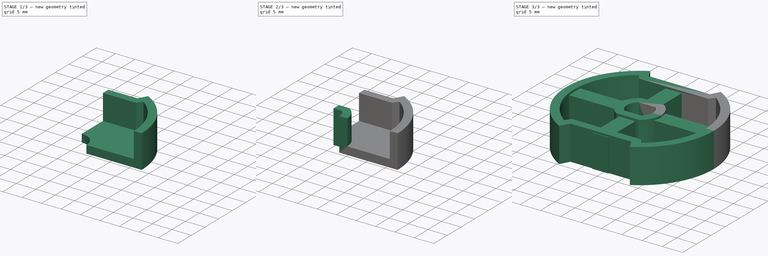
[diagram: build sequence overview — one tinted view per stage of 3, left to right]
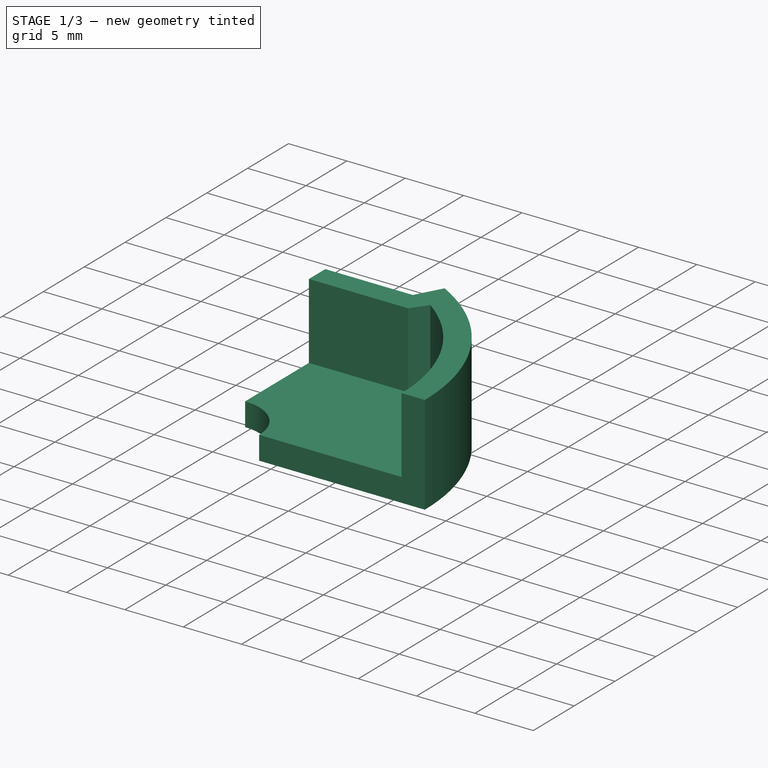
[diagram: stage 1 of 3 — iso view after this stage's code; geometry added in this stage tinted green]
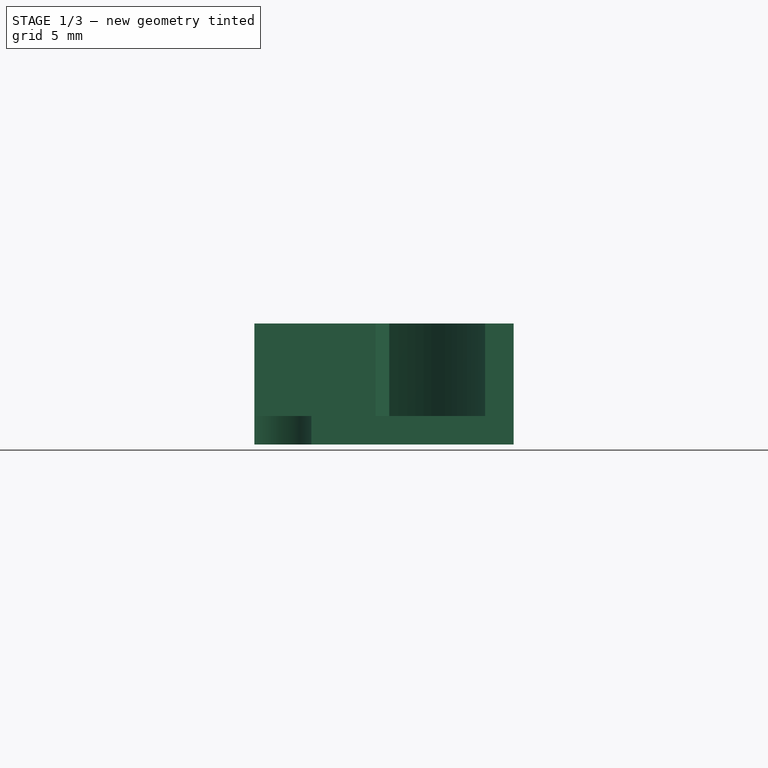
[diagram: stage 1 of 3 — front view after this stage's code; geometry added in this stage tinted green]
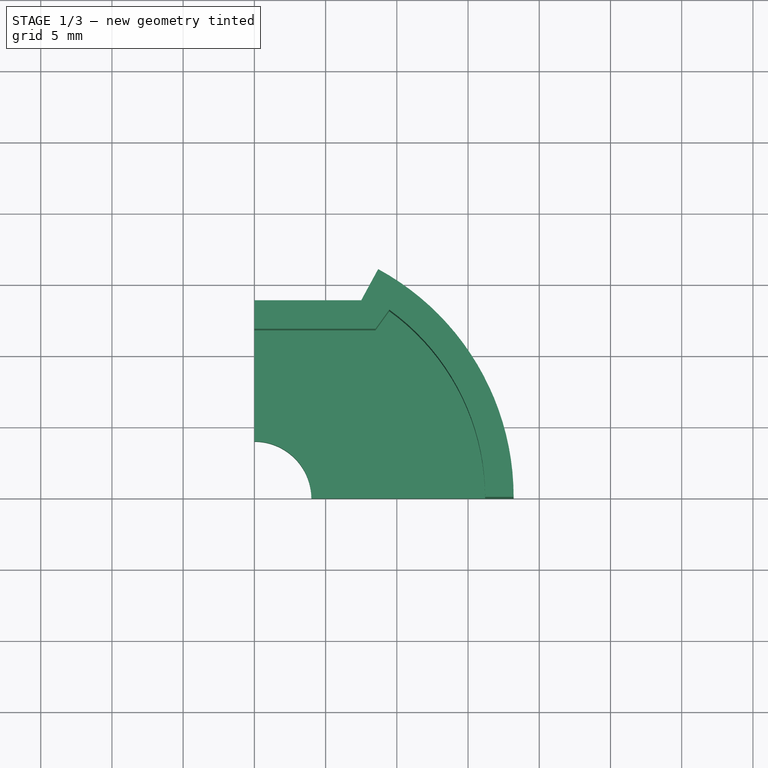
[diagram: stage 1 of 3 — top view after this stage's code; geometry added in this stage tinted green]
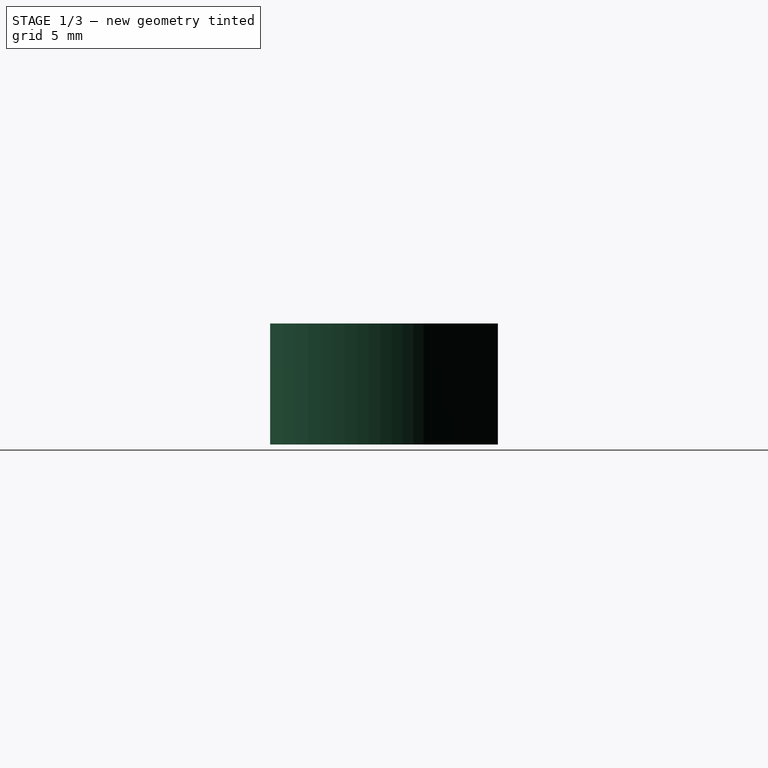
[diagram: stage 1 of 3 — right view after this stage's code; geometry added in this stage tinted green]
FCSTD DOCUMENT  (FreeCAD 1.0R39109 (Git))
Label: EndCap
License: All rights reserved
LicenseURL: http://en.wikipedia.org/wiki/All_rights_reserved
objects: Sketcher::SketchObject×4, PartDesign::Pad×4, PartDesign::Mirrored×2, PartDesign::MultiTransform×1, PartDesign::Body×1
note: 27 computed .brp shape members not serialized (recipe doc carries the construction recipe); baked Part::Feature solids carry a one-line shape summary decoded from their .brp

FEATURE [Sketcher::SketchObject] Sketch
  ArcFitTolerance = 1e-06
  AttachmentSupport = -> [XY_Plane]
  FullyConstrained = true
  MakeInternals = false
  MapMode = 5
  sketch-geometry (9):
    g0: ArcOfCircle CenterX=0 CenterY=0 CenterZ=0 NormalX=0 NormalY=0 NormalZ=1 AngleXU=0 Radius=18.2 StartAngle=0 EndAngle=1.07297
    g1: LineSegment StartX=0 StartY=13.8 StartZ=0 EndX=7.5 EndY=13.8 EndZ=0
    g2: LineSegment StartX=8.69074 StartY=15.991 StartZ=0 EndX=7.5 EndY=13.8 EndZ=0
    g3: ArcOfCircle CenterX=0 CenterY=0 CenterZ=0 NormalX=0 NormalY=0 NormalZ=1 AngleXU=0 Radius=16.2 StartAngle=0 EndAngle=0.946319
    g4: LineSegment StartX=16.2 StartY=0 StartZ=0 EndX=18.2 EndY=0 EndZ=0
    g5: LineSegment StartX=9.47171 StartY=13.1426 StartZ=0 EndX=8.50415 EndY=11.8 EndZ=0
    g6: LineSegment StartX=8.50415 StartY=11.8 StartZ=0 EndX=0 EndY=11.8 EndZ=0
    g7: LineSegment StartX=0 StartY=11.8 StartZ=0 EndX=0 EndY=13.8 EndZ=0
    g8: LineSegment [constr] StartX=7.5 StartY=13.8 StartZ=0 EndX=9.25725 EndY=12.845 EndZ=0
  constraints (27):
    c: Coincident(g0,g-1)
    c: PointOnObject(g0,g-1)
    c: Radius(g0) = 18.2
    c: PointOnObject(g1,g-2)
    c: Horizontal(g1)
    c: DistanceY(g0,g1) = 13.8
    c: DistanceX(g1,g1) = 7.5
    c: Coincident(g2,g0)
    c: Coincident(g2,g1)
    c: PointOnObject(g0,g2)
    c: Coincident(g3,g0)
    c: Coincident(g4,g3)
    c: Coincident(g4,g0)
    c: Coincident(g5,g3)
    c: Coincident(g6,g5)
    c: PointOnObject(g6,g-2)
    c: Horizontal(g6)
    c: Coincident(g7,g6)
    c: Coincident(g7,g1)
    c: Equal(g4,g7)
    c: DistanceX(g4,g4) = 2
    c: PointOnObject(g0,g5)
    c: Coincident(g8,g1)
    c: PointOnObject(g8,g5)
    c: Perpendicular(g2,g8)
    c: Equal(g8,g7)
    c: PointOnObject(g3,g-1)
FEATURE [PartDesign::Pad] Pad  label="OuterRim"
  Direction = (0,0,1)
  Length = 8.5
  Length2 = 10
  Profile = -> Sketch
  ReferenceAxis = -> Sketch [N_Axis]
  Refine = true
  Suppressed = false
  Type = 0
FEATURE [Sketcher::SketchObject] Sketch001
  ArcFitTolerance = 1e-06
  AttachmentSupport = -> [XY_Plane]
  FullyConstrained = true
  MakeInternals = false
  MapMode = 5
  sketch-geometry (6):
    g0: ArcOfCircle CenterX=0 CenterY=0 CenterZ=0 NormalX=0 NormalY=0 NormalZ=1 AngleXU=0 Radius=18 StartAngle=0 EndAngle=1.06682
    g1: LineSegment StartX=0 StartY=13.6 StartZ=0 EndX=7.5 EndY=13.6 EndZ=0
    g2: LineSegment StartX=8.69233 StartY=15.7621 StartZ=0 EndX=7.5 EndY=13.6 EndZ=0
    g3: LineSegment StartX=2e-16 StartY=4 StartZ=0 EndX=0 EndY=13.6 EndZ=0
    g4: LineSegment StartX=4 StartY=0 StartZ=0 EndX=18 EndY=0 EndZ=0
    g5: ArcOfCircle CenterX=0 CenterY=0 CenterZ=0 NormalX=0 NormalY=0 NormalZ=1 AngleXU=0 Radius=4 StartAngle=0 EndAngle=1.5708
  constraints (18):
    c: PointOnObject(g0,g-1)
    c: Radius(g0) = 18
    c: PointOnObject(g1,g-2)
    c: Horizontal(g1)
    c: DistanceY(g0,g1) = 13.6
    c: DistanceX(g1,g1) = 7.5
    c: Coincident(g2,g0)
    c: Coincident(g2,g1)
    c: PointOnObject(g0,g2)
    c: Coincident(g3,g1)
    c: Coincident(g4,g0)
    c: Coincident(g0,g-1)
    c: Coincident(g5,g0)
    c: Coincident(g5,g3)
    c: Coincident(g5,g4)
    c: PointOnObject(g4,g-1)
    c: PointOnObject(g3,g-2)
    c: Radius(g5) = 4
FEATURE [PartDesign::Pad] Pad001  label="BasePad"
  BaseFeature = -> Pad
  Direction = (0,0,1)
  Length = 2
  Length2 = 10
  Profile = -> Sketch001
  ReferenceAxis = -> Sketch001 [N_Axis]
  Refine = true
  Suppressed = false
  Type = 0
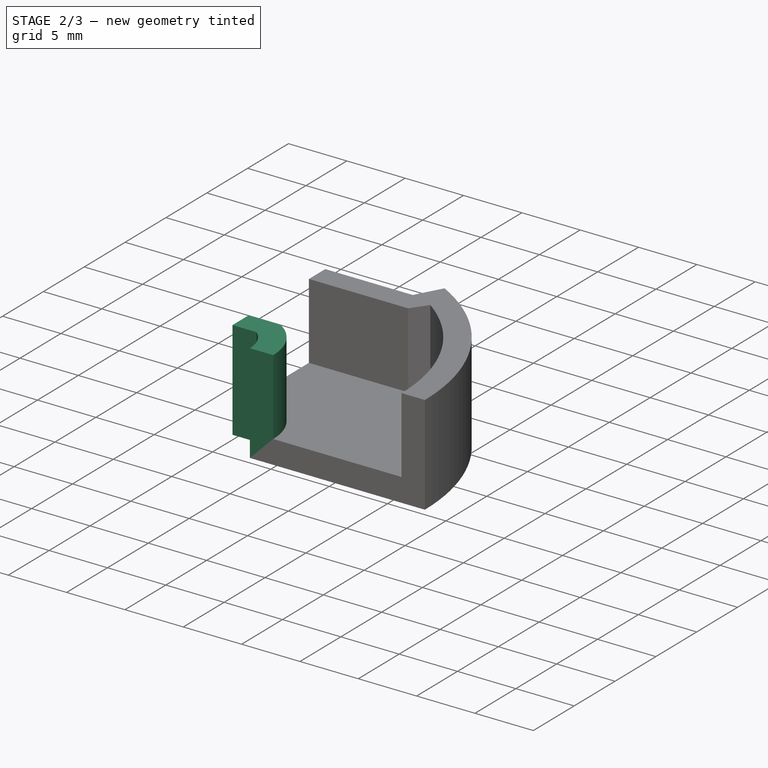
[diagram: stage 2 of 3 — iso view after this stage's code; geometry added in this stage tinted green]
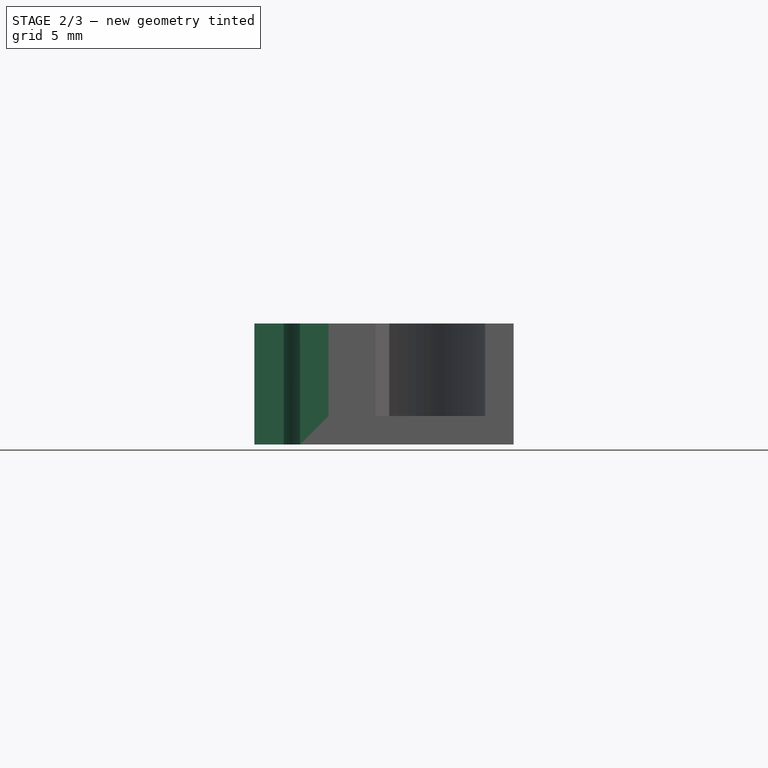
[diagram: stage 2 of 3 — front view after this stage's code; geometry added in this stage tinted green]
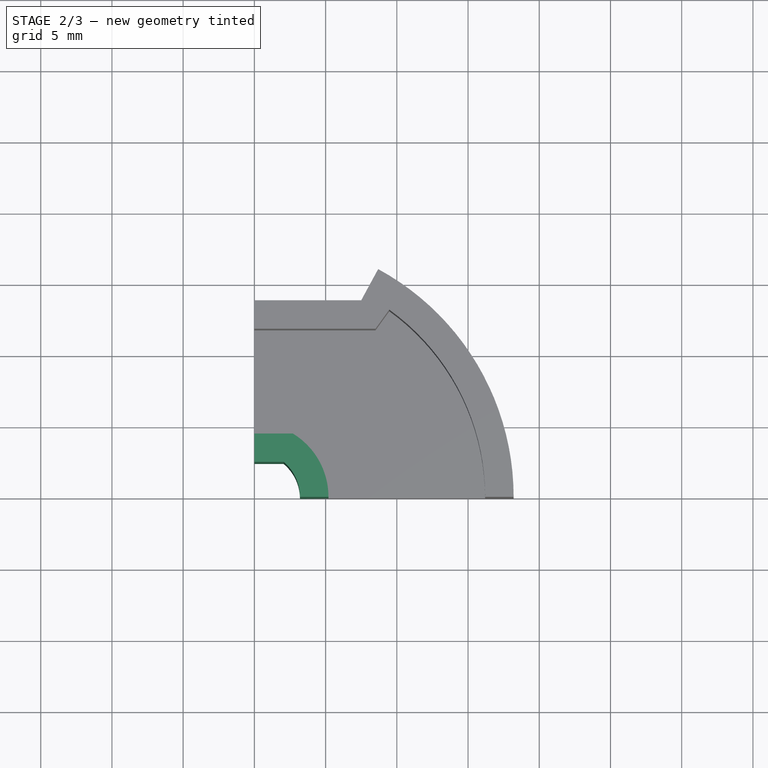
[diagram: stage 2 of 3 — top view after this stage's code; geometry added in this stage tinted green]
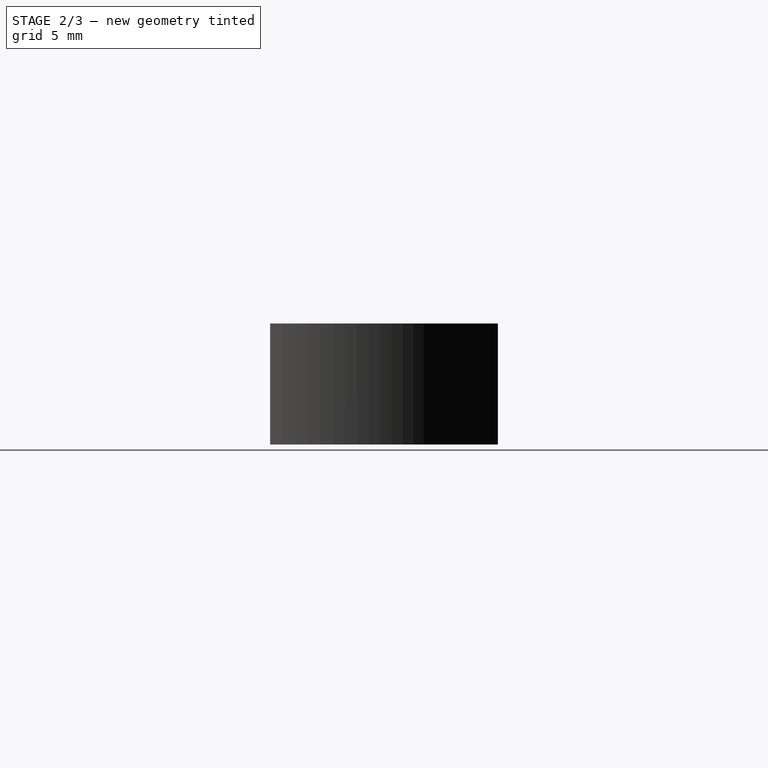
[diagram: stage 2 of 3 — right view after this stage's code; geometry added in this stage tinted green]
FEATURE [Sketcher::SketchObject] Sketch002
  ArcFitTolerance = 1e-06
  AttachmentSupport = -> [XY_Plane]
  FullyConstrained = true
  MakeInternals = false
  MapMode = 5
  sketch-geometry (6):
    g0: ArcOfCircle CenterX=0 CenterY=0 CenterZ=0 NormalX=0 NormalY=0 NormalZ=1 AngleXU=0 Radius=3.2 StartAngle=0 EndAngle=0.872012
    g1: LineSegment StartX=2.05852 StartY=2.45 StartZ=0 EndX=0 EndY=2.45 EndZ=0
    g2: LineSegment StartX=0 StartY=2.45 StartZ=0 EndX=0 EndY=4.45 EndZ=0
    g3: LineSegment StartX=0 StartY=4.45 StartZ=0 EndX=2.69026 EndY=4.45 EndZ=0
    g4: LineSegment StartX=3.2 StartY=0 StartZ=0 EndX=5.2 EndY=0 EndZ=0
    g5: ArcOfCircle CenterX=0 CenterY=0 CenterZ=0 NormalX=0 NormalY=0 NormalZ=1 AngleXU=0 Radius=5.2 StartAngle=0 EndAngle=1.02704
  constraints (18):
    c: Coincident(g0,g-1)
    c: Coincident(g1,g0)
    c: PointOnObject(g1,g-2)
    c: Horizontal(g1)
    c: PointOnObject(g0,g-1)
    c: DistanceY(g0,g1) = 2.45
    c: Radius(g0) = 3.2
    c: Coincident(g2,g1)
    c: Coincident(g3,g2)
    c: Horizontal(g3)
    c: Coincident(g4,g0)
    c: Coincident(g5,g0)
    c: Coincident(g5,g3)
    c: Coincident(g5,g4)
    c: PointOnObject(g4,g-1)
    c: PointOnObject(g2,g-2)
    c: Equal(g2,g4)
    c: DistanceY(g2,g2) = 2
FEATURE [PartDesign::Pad] Pad002  label="HolePad"
  BaseFeature = -> Pad001
  Direction = (0,0,1)
  Length = 8.5
  Length2 = 10
  Profile = -> Sketch002
  ReferenceAxis = -> Sketch002 [N_Axis]
  Refine = true
  Suppressed = false
  Type = 0
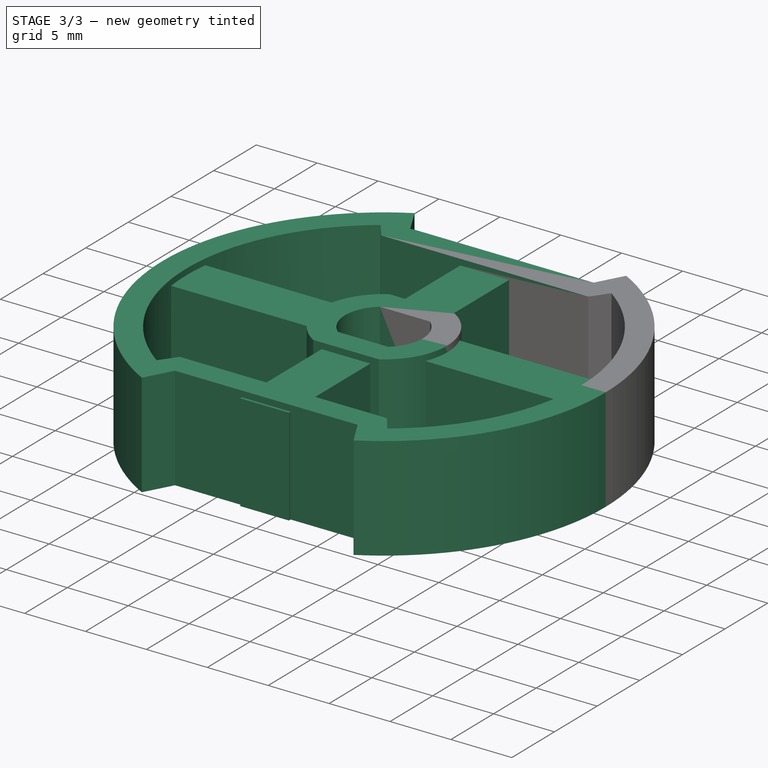
[diagram: stage 3 of 3 — iso view after this stage's code; geometry added in this stage tinted green]
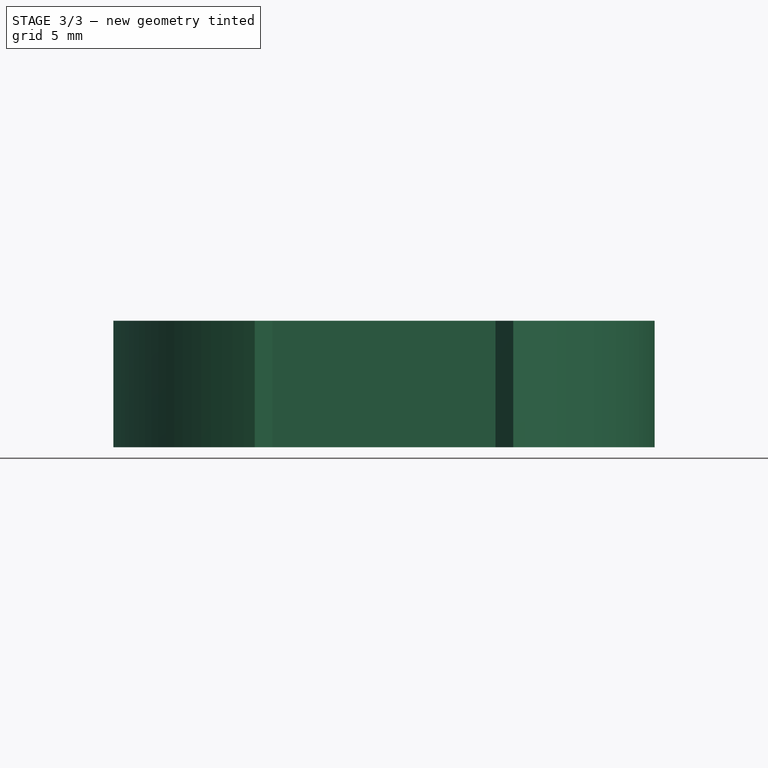
[diagram: stage 3 of 3 — front view after this stage's code; geometry added in this stage tinted green]
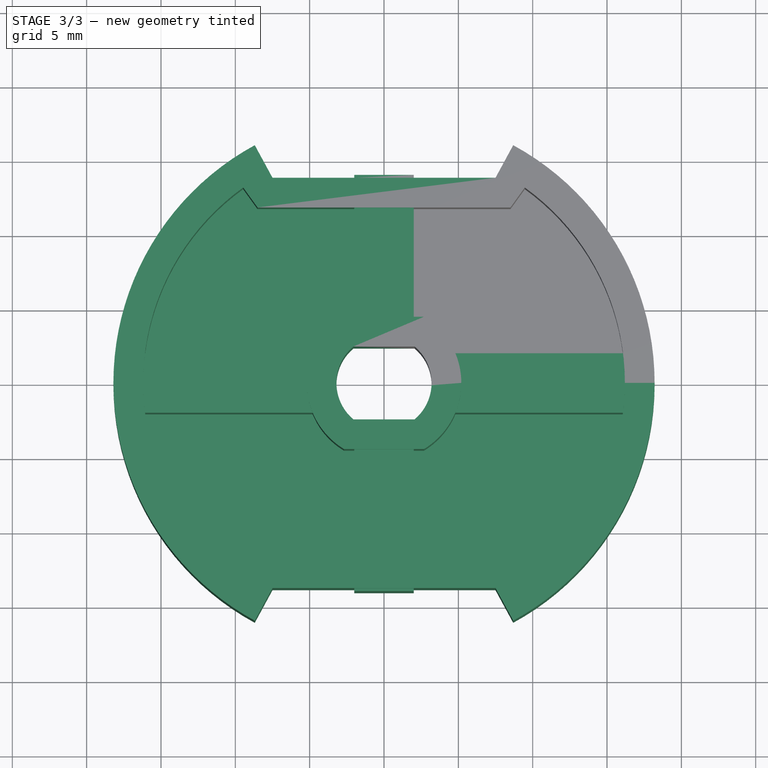
[diagram: stage 3 of 3 — top view after this stage's code; geometry added in this stage tinted green]
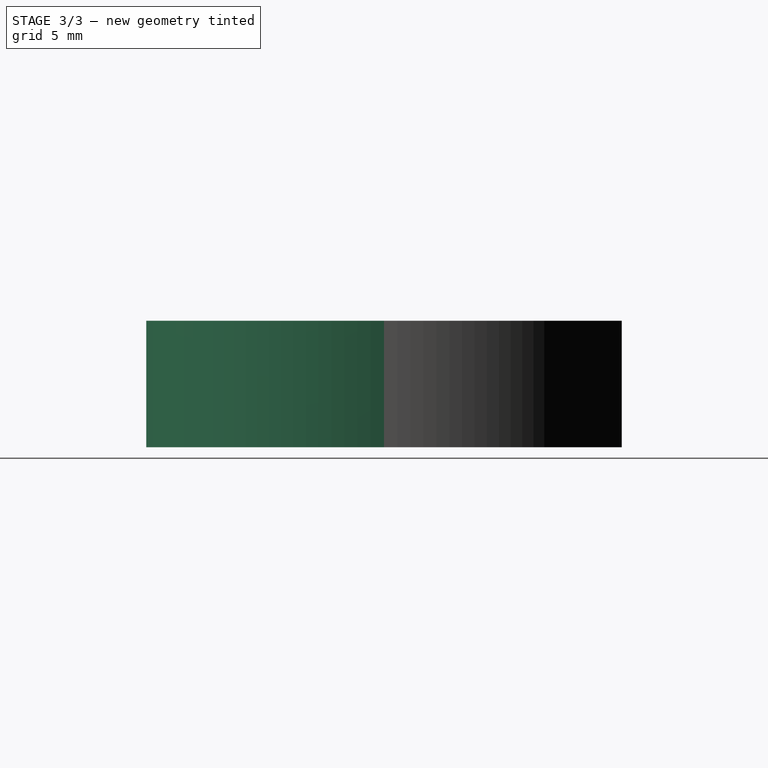
[diagram: stage 3 of 3 — right view after this stage's code; geometry added in this stage tinted green]
FEATURE [Sketcher::SketchObject] Sketch003
  ArcFitTolerance = 1e-06
  AttachmentSupport = -> [XY_Plane]
  FullyConstrained = true
  MakeInternals = false
  MapMode = 5
  sketch-geometry (8):
    g0: LineSegment StartX=0 StartY=4 StartZ=0 EndX=2 EndY=4 EndZ=0
    g1: LineSegment StartX=2 StartY=4 StartZ=0 EndX=2 EndY=14 EndZ=0
    g2: LineSegment StartX=2 StartY=14 StartZ=0 EndX=0 EndY=14 EndZ=0
    g3: LineSegment StartX=0 StartY=14 StartZ=0 EndX=0 EndY=4 EndZ=0
    g4: LineSegment StartX=4 StartY=2 StartZ=0 EndX=4 EndY=0 EndZ=0
    g5: LineSegment StartX=4 StartY=0 StartZ=0 EndX=18 EndY=0 EndZ=0
    g6: LineSegment StartX=18 StartY=0 StartZ=0 EndX=18 EndY=2 EndZ=0
    g7: LineSegment StartX=18 StartY=2 StartZ=0 EndX=4 EndY=2 EndZ=0
  constraints (24):
    c: Coincident(g0,g1)
    c: Coincident(g1,g2)
    c: Coincident(g2,g3)
    c: Coincident(g3,g0)
    c: Horizontal(g0)
    c: Horizontal(g2)
    c: Vertical(g1)
    c: Vertical(g3)
    c: PointOnObject(g0,g-2)
    c: Coincident(g4,g5)
    c: Coincident(g5,g6)
    c: Coincident(g6,g7)
    c: Coincident(g7,g4)
    c: Vertical(g4)
    c: Vertical(g6)
    c: Horizontal(g5)
    c: Horizontal(g7)
    c: PointOnObject(g5,g-1)
    c: DistanceX(g-1,g4) = 4
    c: DistanceY(g-1,g0) = 4
    c: Equal(g0,g4)
    c: DistanceX(g0,g0) = 2
    c: DistanceY(g3,g3) = 10
    c: DistanceX(g5,g5) = 14
FEATURE [PartDesign::Pad] Pad003  label="Spokes"
  BaseFeature = -> Pad002
  Direction = (0,0,1)
  Length = 8
  Length2 = 10
  Profile = -> Sketch003
  ReferenceAxis = -> Sketch003 [N_Axis]
  Refine = true
  Suppressed = false
  Type = 0
FEATURE [PartDesign::Mirrored] Mirrored
  MirrorPlane = -> Sketch003 [V_Axis]
  Refine = true
  Suppressed = false
  TransformMode = 0
FEATURE [PartDesign::Mirrored] Mirrored001
  MirrorPlane = -> Sketch003 [H_Axis]
  Refine = true
  Suppressed = false
  TransformMode = 0
FEATURE [PartDesign::MultiTransform] MultiTransform
  BaseFeature = -> Pad003
  Originals = -> [Pad003,Pad002,Pad001,Pad]
  Refine = true
  Suppressed = false
  TransformMode = 0
  Transformations = -> [Mirrored,Mirrored001]
FEATURE [PartDesign::Body] Body
  AllowCompound = false
  Group = -> [Sketch,Pad,Sketch001,Pad001,Sketch002,Pad002,Sketch003,Pad003,MultiTransform,Mirrored,Mirrored001]
  Origin = -> Origin
  Tip = -> MultiTransform
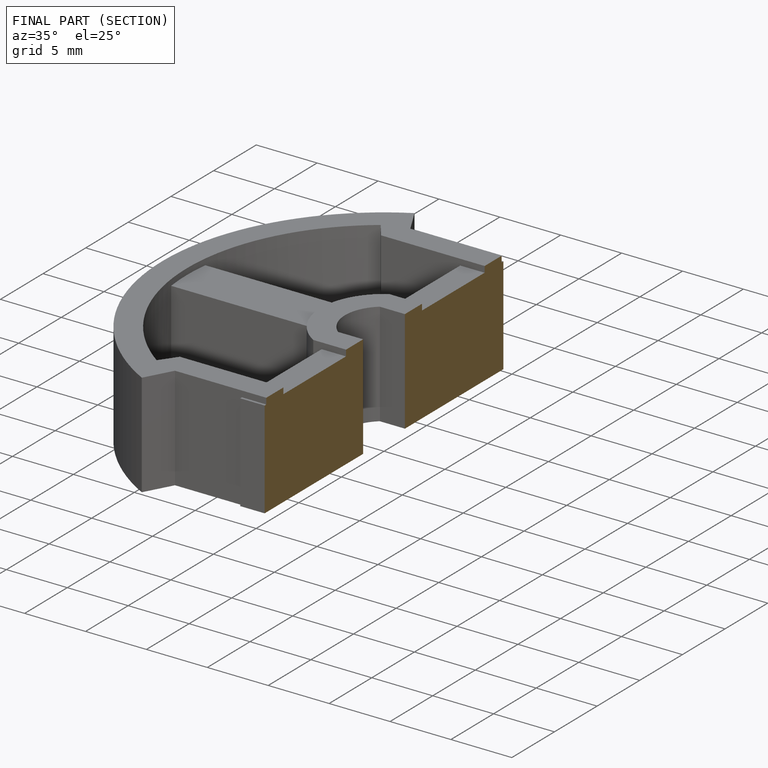
[diagram: finished part — half-section view (interior)]
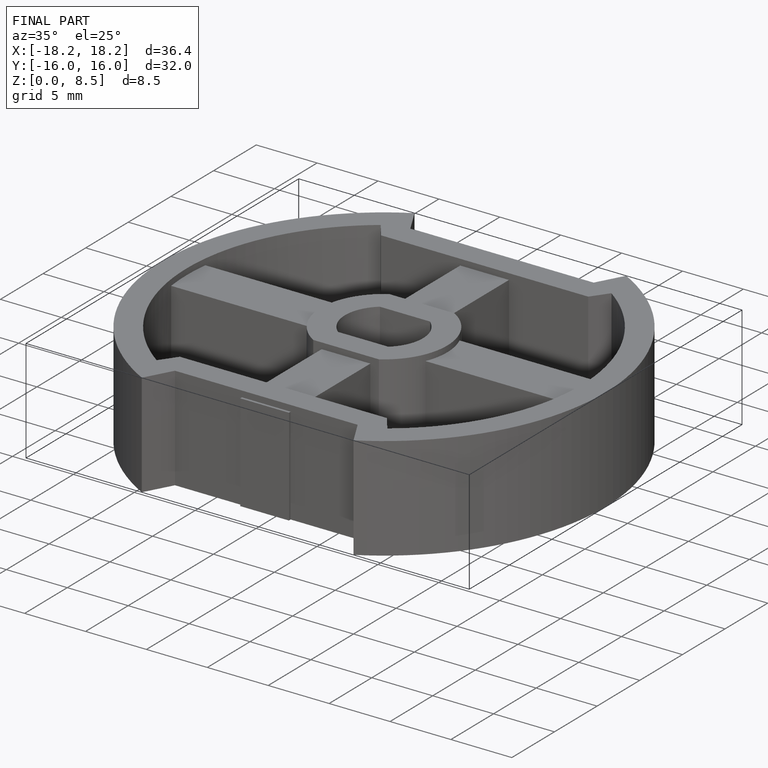
[diagram: finished part — iso view with bounding-box wireframe]
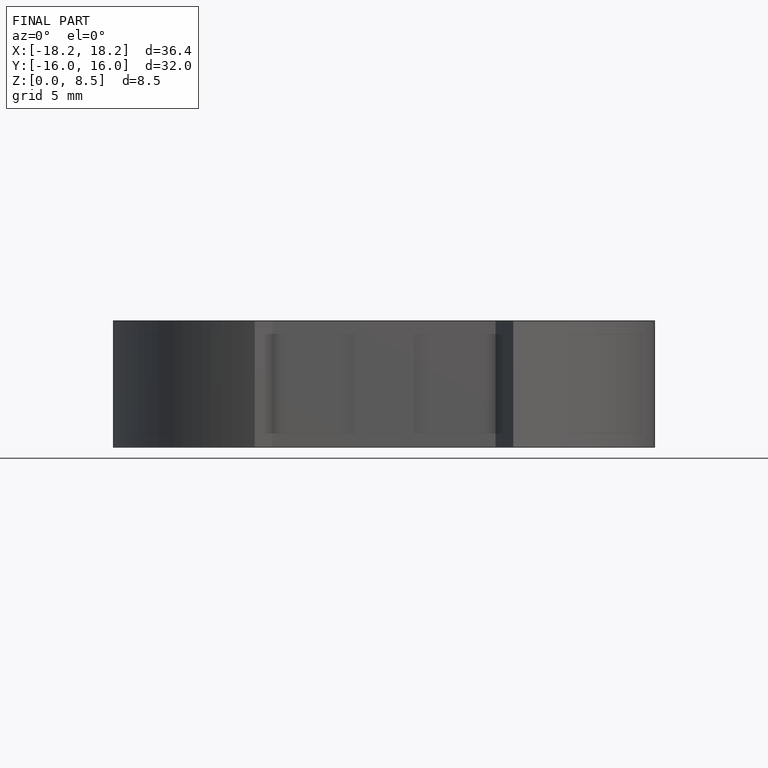
[diagram: finished part — front view with bounding-box wireframe]
